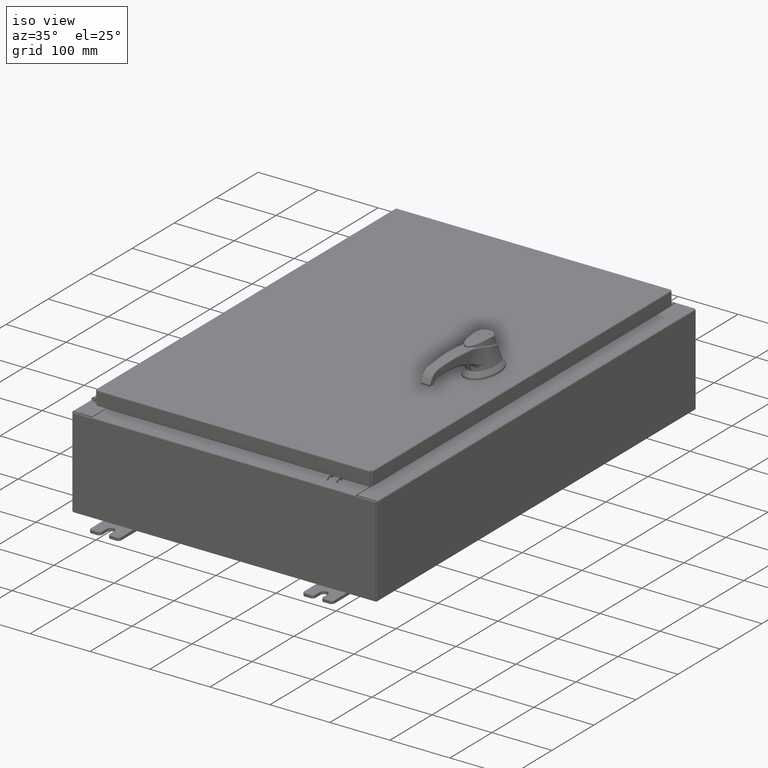
[diagram: clean part render]
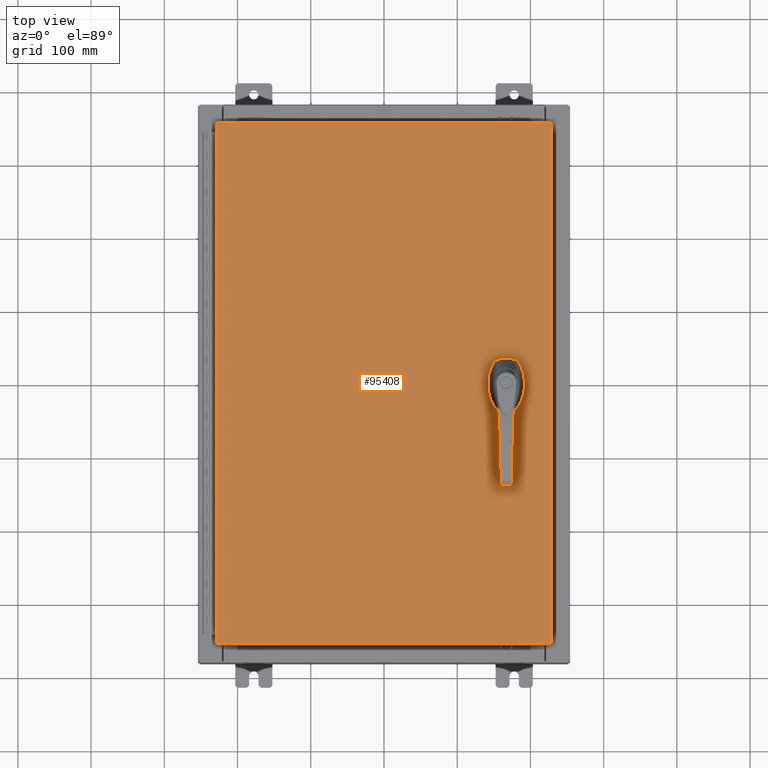
[diagram: tour spotlight — one face highlighted and labeled with its STEP entity id]
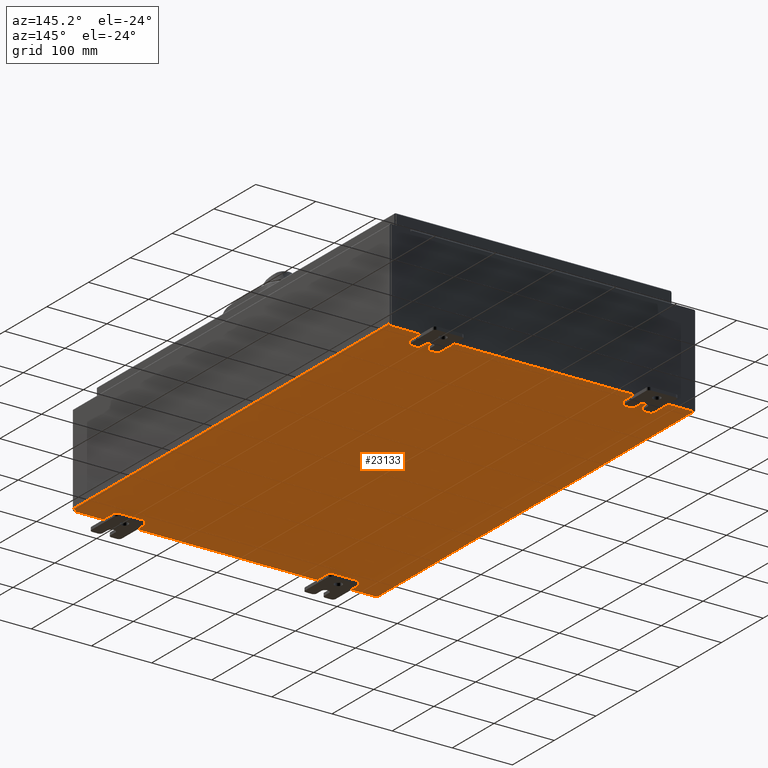
[diagram: tour spotlight — one face highlighted and labeled with its STEP entity id]
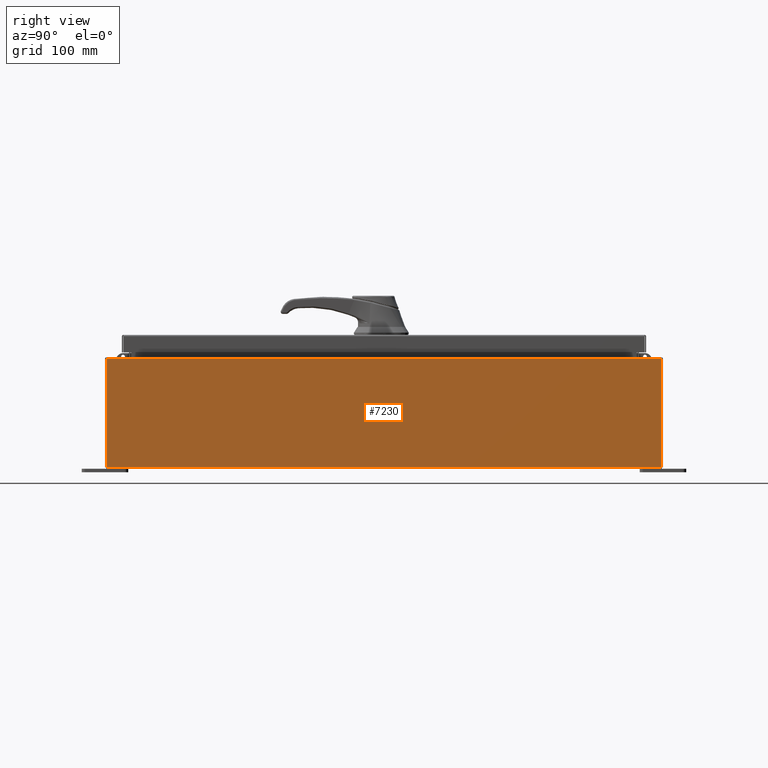
[diagram: tour spotlight — one face highlighted and labeled with its STEP entity id]
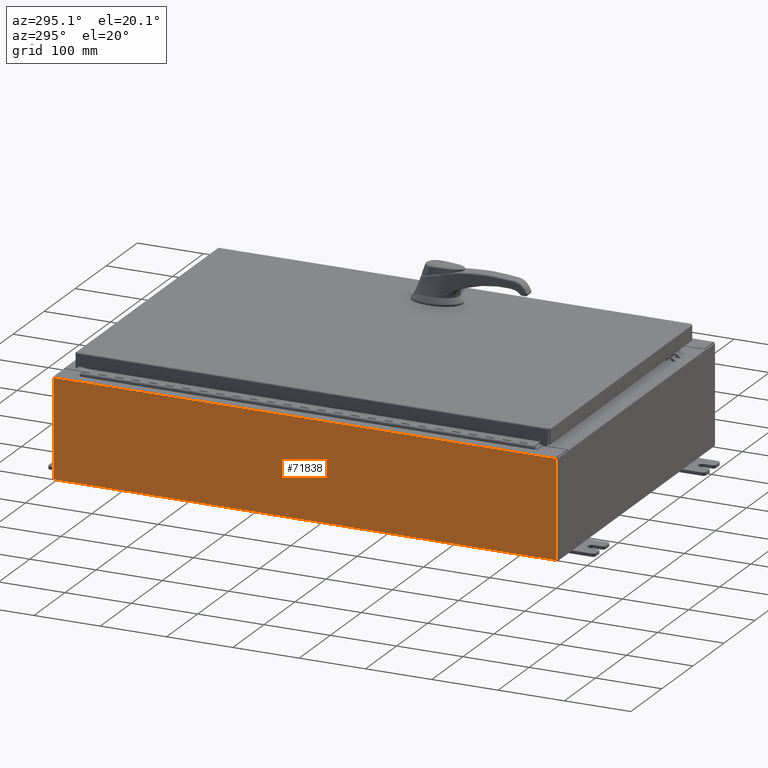
[diagram: tour spotlight — one face highlighted and labeled with its STEP entity id]
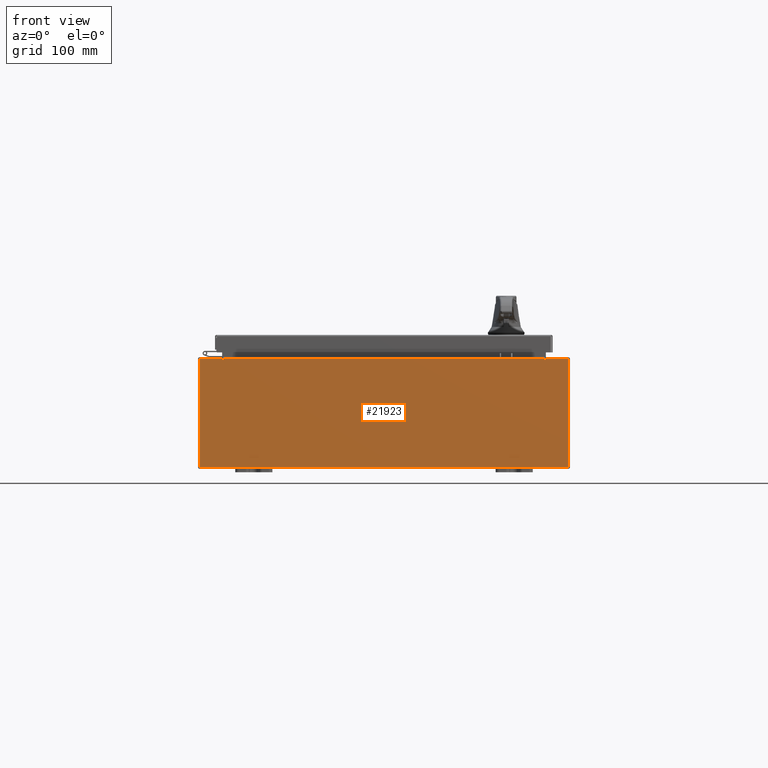
[diagram: tour spotlight — one face highlighted and labeled with its STEP entity id]
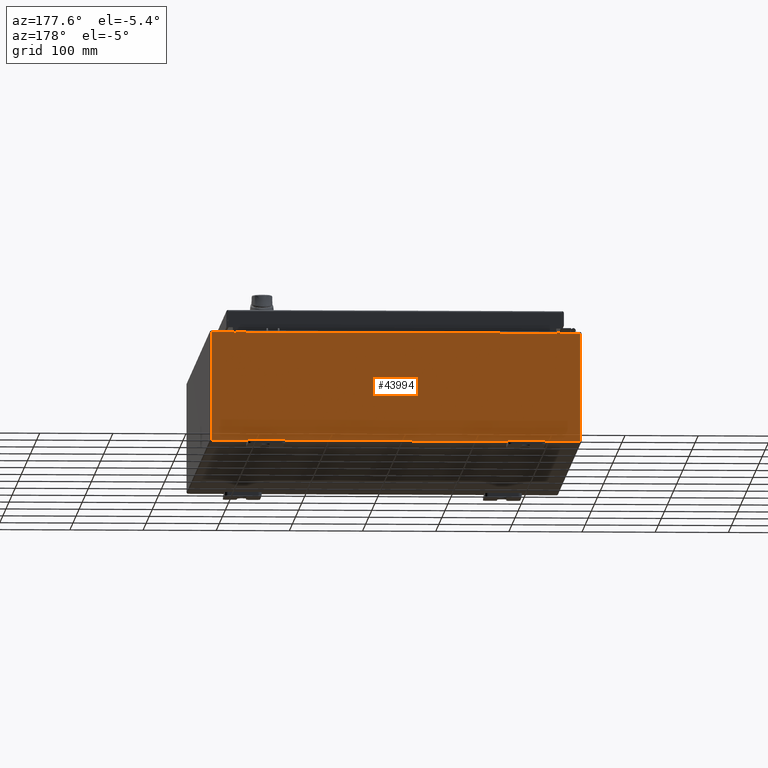
[diagram: tour spotlight — one face highlighted and labeled with its STEP entity id]
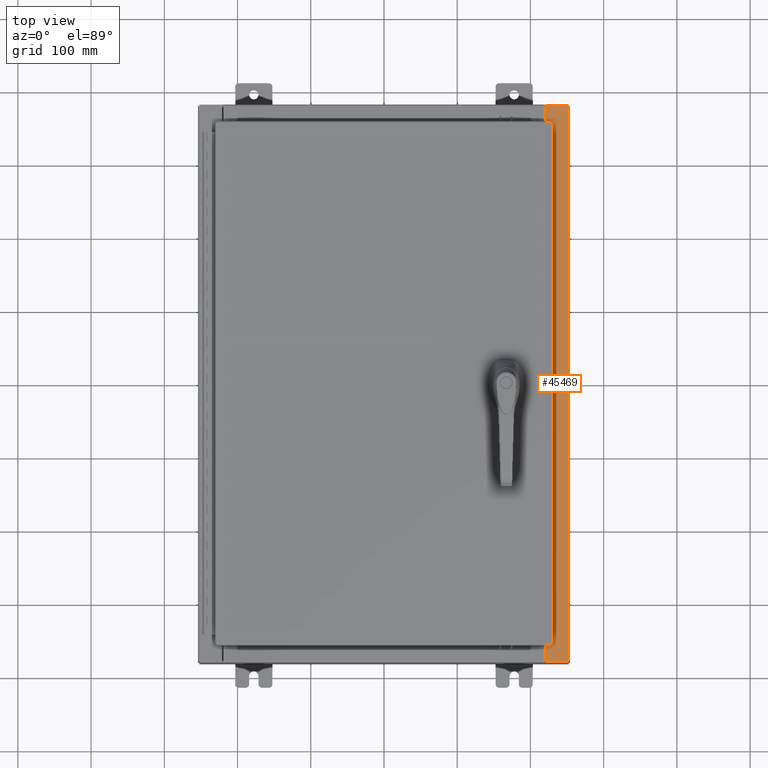
[diagram: tour spotlight — one face highlighted and labeled with its STEP entity id]
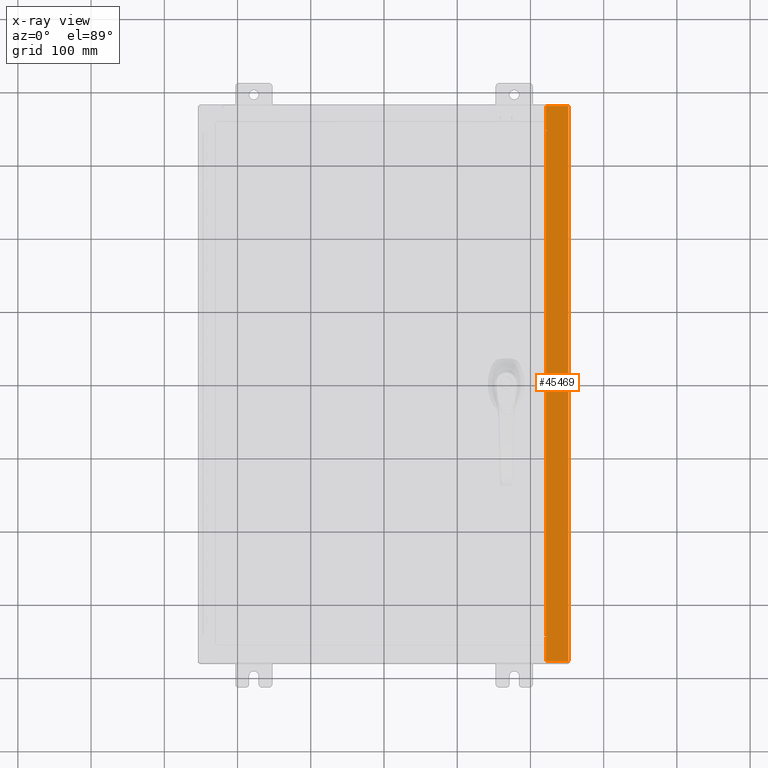
[diagram: x-ray of the same camera — body ghosted, this tour face saturated]
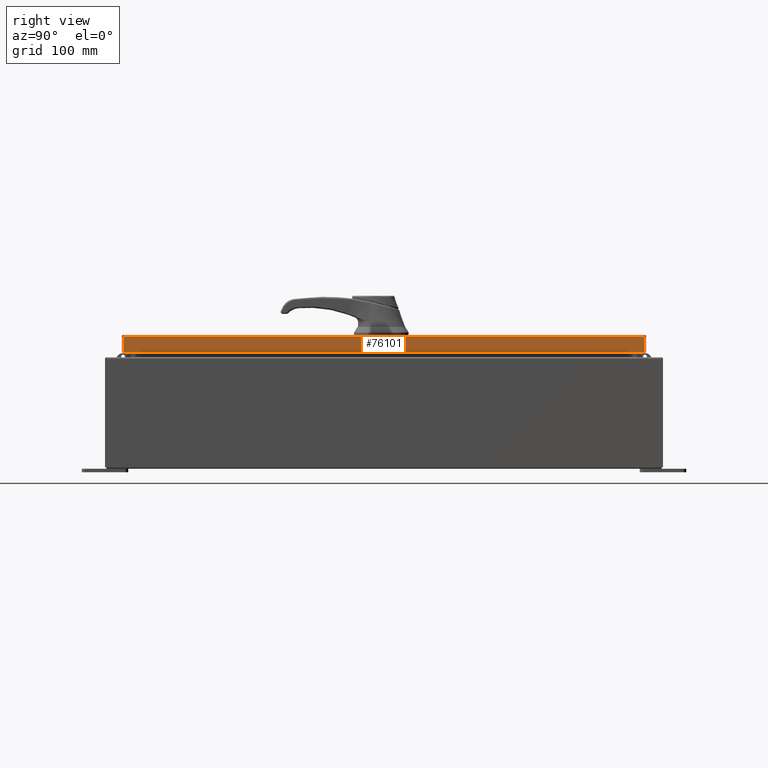
[diagram: tour spotlight — one face highlighted and labeled with its STEP entity id]
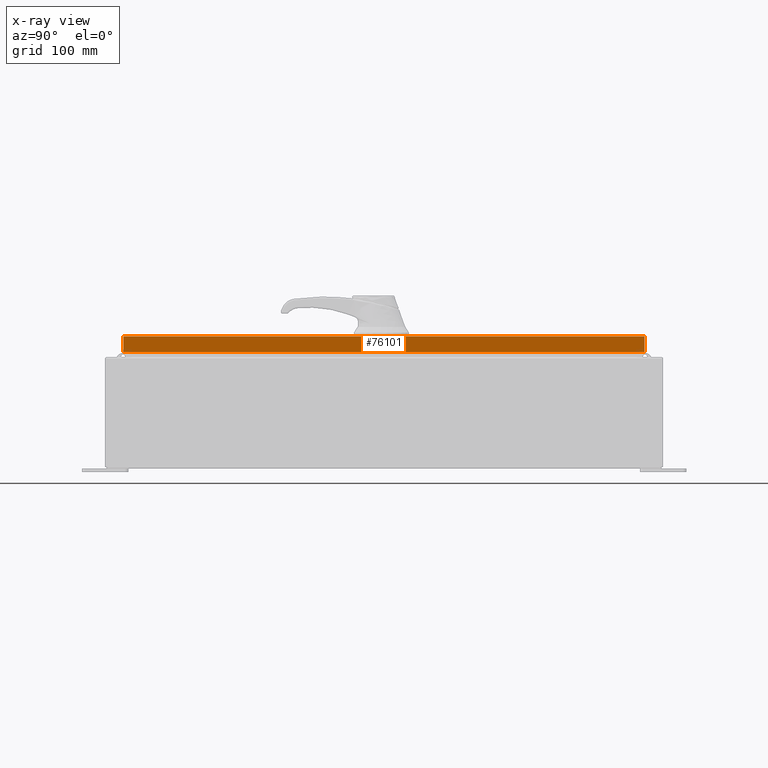
[diagram: x-ray of the same camera — body ghosted, this tour face saturated]
A machine part: a face-by-face anatomy tour. The part has 2662 B-rep faces; the first image is the clean iso view, then the 8 largest visible faces are spotlighted one at a time (largest first), each with its STEP entity span.

Face 1 — top view, entity #95408. In plain terms, the highlighted planar face has unit normal (0, 0, -1).
Definition (entity closure, byte-faithful):
#92 = AXIS2_PLACEMENT_3D ( 'NONE', #82658, #27859, #91804 ) ;
#544 = CARTESIAN_POINT ( 'NONE',  ( 6.778227370756310300, 0.4029999999999252000, 0.0000000000000000000 ) ) ;
#691 = ORIENTED_EDGE ( 'NONE', *, *, #28090, .T. ) ;
#1644 = AXIS2_PLACEMENT_3D ( 'NONE', #43897, #107857, #53075 ) ;
#3075 = CARTESIAN_POINT ( 'NONE',  ( 0.0000000000000000000, 0.4029999999999252000, 0.0000000000000000000 ) ) ;
#4623 = VERTEX_POINT ( 'NONE', #43830 ) ;
#7239 = VERTEX_POINT ( 'NONE', #43063 ) ;
#9115 = ORIENTED_EDGE ( 'NONE', *, *, #14921, .T. ) ;
#9915 = CARTESIAN_POINT ( 'NONE',  ( 6.175000000000075300, 0.2002273707563079800, 0.0000000000000000000 ) ) ;
#11913 = DIRECTION ( 'NONE',  ( -1.000000000000000000, 0.0000000000000000000, 0.0000000000000000000 ) ) ;
#12207 = CARTESIAN_POINT ( 'NONE',  ( -8.990299999999997700, 14.00630000000000100, -2.048885995248197400E-016 ) ) ;
#13212 = FACE_BOUND ( 'NONE', #65849, .T. ) ;
#14921 = EDGE_CURVE ( 'NONE', #85631, #7239, #77626, .T. ) ;
#15693 = LINE ( 'NONE', #12207, #40017 ) ;
#15744 = EDGE_CURVE ( 'NONE', #54691, #48747, #101811, .T. ) ;
#17317 = LINE ( 'NONE', #111252, #87394 ) ;
#19694 = EDGE_CURVE ( 'NONE', #117045, #90565, #102743, .T. ) ;
#23862 = CIRCLE ( 'NONE', #80195, 0.4499999999999156900 ) ;
#24310 = ORIENTED_EDGE ( 'NONE', *, *, #70498, .F. ) ;
#24340 = EDGE_CURVE ( 'NONE', #62204, #54291, #17317, .T. ) ;
#26039 = AXIS2_PLACEMENT_3D ( 'NONE', #72092, #35706, #99696 ) ;
#27643 = CARTESIAN_POINT ( 'NONE',  ( 6.578000000000000300, 0.0000000000000000000, 0.0000000000000000000 ) ) ;
#27859 = DIRECTION ( 'NONE',  ( -0.0000000000000000000, 0.0000000000000000000, 1.000000000000000000 ) ) ;
#28090 = EDGE_CURVE ( 'NONE', #54291, #54691, #81398, .T. ) ;
#31062 = CARTESIAN_POINT ( 'NONE',  ( 6.377772629243691100, -0.4029999999999252000, 0.0000000000000000000 ) ) ;
#31640 = CARTESIAN_POINT ( 'NONE',  ( 6.578000000000000300, -1.338000000000000100, 0.0000000000000000000 ) ) ;
#33924 = CARTESIAN_POINT ( 'NONE',  ( 6.980999999999926200, 0.0000000000000000000, 0.0000000000000000000 ) ) ;
#35706 = DIRECTION ( 'NONE',  ( 0.0000000000000000000, 0.0000000000000000000, -1.000000000000000000 ) ) ;
#36673 = CARTESIAN_POINT ( 'NONE',  ( 0.0000000000000000000, -0.4029999999999252000, 0.0000000000000000000 ) ) ;
#36841 = DIRECTION ( 'NONE',  ( 1.000000000000000000, 0.0000000000000000000, 0.0000000000000000000 ) ) ;
#37277 = CIRCLE ( 'NONE', #1644, 0.1715000000000000700 ) ;
#37427 = CARTESIAN_POINT ( 'NONE',  ( 8.990300000000001300, -14.00629999999999800, -7.683322482180740400E-016 ) ) ;
#37844 = CARTESIAN_POINT ( 'NONE',  ( 6.578000000000000300, 0.0000000000000000000, 0.0000000000000000000 ) ) ;
#38164 = CARTESIAN_POINT ( 'NONE',  ( 8.990300000000001300, -14.00629999999999800, -7.683322482180740400E-016 ) ) ;
#40017 = VECTOR ( 'NONE', #67010, 39.37007874015748100 ) ;
#40130 = CIRCLE ( 'NONE', #107537, 0.4499999999999156900 ) ;
#40859 = DIRECTION ( 'NONE',  ( 1.000000000000000000, 0.0000000000000000000, 0.0000000000000000000 ) ) ;
#43063 = CARTESIAN_POINT ( 'NONE',  ( 6.980999999999926200, -0.2002273707563079800, 0.0000000000000000000 ) ) ;
#43830 = CARTESIAN_POINT ( 'NONE',  ( 6.175000000000075300, -0.2002273707563079800, 0.0000000000000000000 ) ) ;
#43897 = CARTESIAN_POINT ( 'NONE',  ( 6.578000000000000300, -1.338000000000000100, 0.0000000000000000000 ) ) ;
#44626 = ORIENTED_EDGE ( 'NONE', *, *, #78224, .F. ) ;
#44869 = EDGE_LOOP ( 'NONE', ( #62395, #691, #45487, #103139 ) ) ;
#45487 = ORIENTED_EDGE ( 'NONE', *, *, #15744, .T. ) ;
#45591 = VECTOR ( 'NONE', #109932, 39.37007874015748100 ) ;
#47082 = DIRECTION ( 'NONE',  ( 1.000000000000000000, 0.0000000000000000000, 0.0000000000000000000 ) ) ;
#47268 = CARTESIAN_POINT ( 'NONE',  ( 8.990300000000001300, 14.00629999999999800, -2.048885995248197400E-016 ) ) ;
#48747 = VERTEX_POINT ( 'NONE', #105863 ) ;
#50665 = CARTESIAN_POINT ( 'NONE',  ( 6.578000000000000300, 0.0000000000000000000, 0.0000000000000000000 ) ) ;
#53075 = DIRECTION ( 'NONE',  ( 1.000000000000000000, 0.0000000000000000000, 0.0000000000000000000 ) ) ;
#53214 = VECTOR ( 'NONE', #67573, 39.37007874015748100 ) ;
#54224 = VECTOR ( 'NONE', #111392, 39.37007874015748100 ) ;
#54291 = VERTEX_POINT ( 'NONE', #37427 ) ;
#54691 = VERTEX_POINT ( 'NONE', #83912 ) ;
#57176 = CIRCLE ( 'NONE', #94510, 0.1715000000000000700 ) ;
#59292 = EDGE_LOOP ( 'NONE', ( #109755, #96561 ) ) ;
#59871 = DIRECTION ( 'NONE',  ( 1.000000000000000000, 0.0000000000000000000, 0.0000000000000000000 ) ) ;
#61947 = VECTOR ( 'NONE', #79205, 39.37007874015748100 ) ;
#62204 = VERTEX_POINT ( 'NONE', #65488 ) ;
#62395 = ORIENTED_EDGE ( 'NONE', *, *, #24340, .T. ) ;
#64008 = ORIENTED_EDGE ( 'NONE', *, *, #110717, .F. ) ;
#64624 = CIRCLE ( 'NONE', #92, 0.4499999999999156900 ) ;
#64919 = CARTESIAN_POINT ( 'NONE',  ( 6.980999999999926200, 0.2002273707563080300, 0.0000000000000000000 ) ) ;
#65488 = CARTESIAN_POINT ( 'NONE',  ( -8.990299999999997700, -14.00629999999999800, 1.980589795406590900E-015 ) ) ;
#65849 = EDGE_LOOP ( 'NONE', ( #9115, #24310, #64008, #104284, #44626, #104564, #110988, #76810 ) ) ;
#67010 = DIRECTION ( 'NONE',  ( 0.0000000000000000000, -1.000000000000000000, 0.0000000000000000000 ) ) ;
#67573 = DIRECTION ( 'NONE',  ( -1.000000000000000000, -0.0000000000000000000, -0.0000000000000000000 ) ) ;
#69512 = DIRECTION ( 'NONE',  ( 0.0000000000000000000, -1.000000000000000000, 0.0000000000000000000 ) ) ;
#70498 = EDGE_CURVE ( 'NONE', #87689, #7239, #100191, .T. ) ;
#72092 = CARTESIAN_POINT ( 'NONE',  ( 0.0000000000000000000, 0.0000000000000000000, 0.0000000000000000000 ) ) ;
#72741 = LINE ( 'NONE', #36673, #45591 ) ;
#74439 = DIRECTION ( 'NONE',  ( 1.000000000000000000, -0.0000000000000000000, -0.0000000000000000000 ) ) ;
#75565 = VECTOR ( 'NONE', #11913, 39.37007874015748100 ) ;
#75750 = CARTESIAN_POINT ( 'NONE',  ( 6.377772629243691100, 0.4029999999999252000, 0.0000000000000000000 ) ) ;
#76810 = ORIENTED_EDGE ( 'NONE', *, *, #100011, .F. ) ;
#77307 = VERTEX_POINT ( 'NONE', #95621 ) ;
#77626 = LINE ( 'NONE', #33924, #61947 ) ;
#78224 = EDGE_CURVE ( 'NONE', #114619, #4623, #111476, .T. ) ;
#79205 = DIRECTION ( 'NONE',  ( 0.0000000000000000000, -1.000000000000000000, 0.0000000000000000000 ) ) ;
#79902 = CARTESIAN_POINT ( 'NONE',  ( 6.778227370756310300, -0.4029999999999252000, 0.0000000000000000000 ) ) ;
#80195 = AXIS2_PLACEMENT_3D ( 'NONE', #27643, #91604, #36841 ) ;
#81398 = LINE ( 'NONE', #38164, #54224 ) ;
#82658 = CARTESIAN_POINT ( 'NONE',  ( 6.578000000000000300, 0.0000000000000000000, 0.0000000000000000000 ) ) ;
#83912 = CARTESIAN_POINT ( 'NONE',  ( 8.990300000000001300, 14.00629999999999800, -2.048885995248197400E-016 ) ) ;
#84137 = EDGE_CURVE ( 'NONE', #4623, #95997, #64624, .T. ) ;
#85146 = EDGE_CURVE ( 'NONE', #77307, #111325, #37277, .T. ) ;
#85631 = VERTEX_POINT ( 'NONE', #64919 ) ;
#86155 = FACE_BOUND ( 'NONE', #59292, .T. ) ;
#87394 = VECTOR ( 'NONE', #74439, 39.37007874015748100 ) ;
#87546 = CARTESIAN_POINT ( 'NONE',  ( 6.406500000000000300, -1.338000000000000100, 0.0000000000000000000 ) ) ;
#87689 = VERTEX_POINT ( 'NONE', #79902 ) ;
#90453 = PLANE ( 'NONE',  #26039 ) ;
#90565 = VERTEX_POINT ( 'NONE', #75750 ) ;
#91604 = DIRECTION ( 'NONE',  ( -0.0000000000000000000, 0.0000000000000000000, 1.000000000000000000 ) ) ;
#91804 = DIRECTION ( 'NONE',  ( 1.000000000000000000, 0.0000000000000000000, 0.0000000000000000000 ) ) ;
#94510 = AXIS2_PLACEMENT_3D ( 'NONE', #31640, #95616, #40859 ) ;
#95408 = ADVANCED_FACE ( 'NONE', ( #86155, #107702, #13212 ), #90453, .F. ) ;
#95616 = DIRECTION ( 'NONE',  ( -0.0000000000000000000, 0.0000000000000000000, 1.000000000000000000 ) ) ;
#95621 = CARTESIAN_POINT ( 'NONE',  ( 6.749500000000001200, -1.338000000000000100, 0.0000000000000000000 ) ) ;
#95997 = VERTEX_POINT ( 'NONE', #31062 ) ;
#96561 = ORIENTED_EDGE ( 'NONE', *, *, #101354, .F. ) ;
#99295 = AXIS2_PLACEMENT_3D ( 'NONE', #37844, #101801, #47082 ) ;
#99696 = DIRECTION ( 'NONE',  ( -1.000000000000000000, 0.0000000000000000000, -0.0000000000000000000 ) ) ;
#100011 = EDGE_CURVE ( 'NONE', #85631, #117045, #40130, .T. ) ;
#100191 = CIRCLE ( 'NONE', #99295, 0.4499999999999156900 ) ;
#101354 = EDGE_CURVE ( 'NONE', #111325, #77307, #57176, .T. ) ;
#101801 = DIRECTION ( 'NONE',  ( -0.0000000000000000000, 0.0000000000000000000, 1.000000000000000000 ) ) ;
#101811 = LINE ( 'NONE', #47268, #53214 ) ;
#102743 = LINE ( 'NONE', #3075, #75565 ) ;
#103139 = ORIENTED_EDGE ( 'NONE', *, *, #109074, .T. ) ;
#104284 = ORIENTED_EDGE ( 'NONE', *, *, #84137, .F. ) ;
#104564 = ORIENTED_EDGE ( 'NONE', *, *, #105899, .F. ) ;
#105724 = VECTOR ( 'NONE', #69512, 39.37007874015748100 ) ;
#105863 = CARTESIAN_POINT ( 'NONE',  ( -8.990299999999997700, 14.00630000000000100, -2.048885995248197400E-016 ) ) ;
#105899 = EDGE_CURVE ( 'NONE', #90565, #114619, #23862, .T. ) ;
#106707 = CARTESIAN_POINT ( 'NONE',  ( 6.175000000000075300, 0.0000000000000000000, 0.0000000000000000000 ) ) ;
#107537 = AXIS2_PLACEMENT_3D ( 'NONE', #50665, #114627, #59871 ) ;
#107702 = FACE_OUTER_BOUND ( 'NONE', #44869, .T. ) ;
#107857 = DIRECTION ( 'NONE',  ( -0.0000000000000000000, 0.0000000000000000000, 1.000000000000000000 ) ) ;
#109074 = EDGE_CURVE ( 'NONE', #48747, #62204, #15693, .T. ) ;
#109755 = ORIENTED_EDGE ( 'NONE', *, *, #85146, .F. ) ;
#109932 = DIRECTION ( 'NONE',  ( 1.000000000000000000, 0.0000000000000000000, 0.0000000000000000000 ) ) ;
#110717 = EDGE_CURVE ( 'NONE', #95997, #87689, #72741, .T. ) ;
#110988 = ORIENTED_EDGE ( 'NONE', *, *, #19694, .F. ) ;
#111252 = CARTESIAN_POINT ( 'NONE',  ( -8.990299999999996000, -14.00629999999999800, 1.963515745446189200E-015 ) ) ;
#111325 = VERTEX_POINT ( 'NONE', #87546 ) ;
#111392 = DIRECTION ( 'NONE',  ( 0.0000000000000000000, 1.000000000000000000, 0.0000000000000000000 ) ) ;
#111476 = LINE ( 'NONE', #106707, #105724 ) ;
#114619 = VERTEX_POINT ( 'NONE', #9915 ) ;
#114627 = DIRECTION ( 'NONE',  ( -0.0000000000000000000, 0.0000000000000000000, 1.000000000000000000 ) ) ;
#117045 = VERTEX_POINT ( 'NONE', #544 ) ;

Face 2 — auxiliary view, entity #23133. In plain terms, the highlighted planar face has unit normal (0, 0, -1).
Definition (entity closure, byte-faithful):
#10346 = DIRECTION ( 'NONE',  ( -0.0000000000000000000, 1.000000000000000000, -0.0000000000000000000 ) ) ;
#16162 = DIRECTION ( 'NONE',  ( 1.000000000000000000, 0.0000000000000000000, 0.0000000000000000000 ) ) ;
#17081 = AXIS2_PLACEMENT_3D ( 'NONE', #46960, #110945, #56143 ) ;
#18031 = VERTEX_POINT ( 'NONE', #48828 ) ;
#18890 = FACE_OUTER_BOUND ( 'NONE', #115937, .T. ) ;
#22009 = CARTESIAN_POINT ( 'NONE',  ( 9.912300000000000100, 14.92530000000000500, -0.07469999999999994700 ) ) ;
#23133 = ADVANCED_FACE ( 'NONE', ( #18890 ), #37709, .T. ) ;
#24408 = LINE ( 'NONE', #74344, #48781 ) ;
#24589 = EDGE_CURVE ( 'NONE', #28453, #18031, #24408, .T. ) ;
#26120 = ORIENTED_EDGE ( 'NONE', *, *, #68211, .T. ) ;
#28453 = VERTEX_POINT ( 'NONE', #87234 ) ;
#28895 = LINE ( 'NONE', #97125, #59004 ) ;
#31739 = VERTEX_POINT ( 'NONE', #22009 ) ;
#35713 = VECTOR ( 'NONE', #16162, 39.37007874015748100 ) ;
#36121 = LINE ( 'NONE', #44887, #84730 ) ;
#37709 = PLANE ( 'NONE',  #17081 ) ;
#39993 = ORIENTED_EDGE ( 'NONE', *, *, #24589, .T. ) ;
#41775 = CARTESIAN_POINT ( 'NONE',  ( 9.912300000000000100, -14.92529999999999600, -0.07470000000000000300 ) ) ;
#44887 = CARTESIAN_POINT ( 'NONE',  ( -10.00000000000000000, 14.92530000000000500, -0.07470000000000000300 ) ) ;
#46960 = CARTESIAN_POINT ( 'NONE',  ( 0.0000000000000000000, 0.0000000000000000000, -0.07470000000000000300 ) ) ;
#48781 = VECTOR ( 'NONE', #10346, 39.37007874015748100 ) ;
#48828 = CARTESIAN_POINT ( 'NONE',  ( -9.912300000000000100, 14.92530000000000500, -0.07470000000000000300 ) ) ;
#56143 = DIRECTION ( 'NONE',  ( -1.000000000000000000, 0.0000000000000000000, -0.0000000000000000000 ) ) ;
#59004 = VECTOR ( 'NONE', #60791, 39.37007874015748100 ) ;
#60791 = DIRECTION ( 'NONE',  ( -0.0000000000000000000, -1.000000000000000000, -0.0000000000000000000 ) ) ;
#63265 = DIRECTION ( 'NONE',  ( -1.000000000000000000, -0.0000000000000000000, -0.0000000000000000000 ) ) ;
#66249 = EDGE_CURVE ( 'NONE', #31739, #18031, #36121, .T. ) ;
#68211 = EDGE_CURVE ( 'NONE', #31739, #102843, #28895, .T. ) ;
#71066 = EDGE_CURVE ( 'NONE', #28453, #102843, #84308, .T. ) ;
#74344 = CARTESIAN_POINT ( 'NONE',  ( -9.912300000000000100, -14.92529999999999600, -0.07469999999999994700 ) ) ;
#84308 = LINE ( 'NONE', #116947, #35713 ) ;
#84730 = VECTOR ( 'NONE', #63265, 39.37007874015748100 ) ;
#87234 = CARTESIAN_POINT ( 'NONE',  ( -9.912300000000000100, -14.92529999999999600, -0.07469999999999994700 ) ) ;
#92704 = ORIENTED_EDGE ( 'NONE', *, *, #66249, .F. ) ;
#97125 = CARTESIAN_POINT ( 'NONE',  ( 9.912300000000000100, 14.92530000000000500, -0.07469999999999994700 ) ) ;
#102843 = VERTEX_POINT ( 'NONE', #41775 ) ;
#110945 = DIRECTION ( 'NONE',  ( 0.0000000000000000000, 0.0000000000000000000, -1.000000000000000000 ) ) ;
#114831 = ORIENTED_EDGE ( 'NONE', *, *, #71066, .F. ) ;
#115937 = EDGE_LOOP ( 'NONE', ( #114831, #39993, #92704, #26120 ) ) ;
#116947 = CARTESIAN_POINT ( 'NONE',  ( -10.00000000000000000, -14.92529999999999600, -0.07470000000000000300 ) ) ;

Face 3 — right view, entity #7230. In plain terms, the highlighted planar face has unit normal (-1, 0, 0).
Definition (entity closure, byte-faithful):
#412 = ORIENTED_EDGE ( 'NONE', *, *, #53691, .F. ) ;
#3364 = VERTEX_POINT ( 'NONE', #83785 ) ;
#3996 = CARTESIAN_POINT ( 'NONE',  ( 10.00000000000000000, -14.92529999999999600, -3.345627304943080600E-014 ) ) ;
#7230 = ADVANCED_FACE ( 'NONE', ( #67960 ), #115914, .F. ) ;
#8603 = DIRECTION ( 'NONE',  ( 3.319545939341922000E-015, 0.0000000000000000000, 1.000000000000000000 ) ) ;
#9199 = CARTESIAN_POINT ( 'NONE',  ( 10.00000000000002000, 14.92530000000000700, 5.837600000000001000 ) ) ;
#12672 = VERTEX_POINT ( 'NONE', #21398 ) ;
#16226 = LINE ( 'NONE', #3996, #116413 ) ;
#17066 = ORIENTED_EDGE ( 'NONE', *, *, #54567, .T. ) ;
#18241 = VECTOR ( 'NONE', #99541, 39.37007874015748100 ) ;
#21398 = CARTESIAN_POINT ( 'NONE',  ( 10.00000000000000000, -14.92529999999999600, 0.01299999999999985900 ) ) ;
#24511 = LINE ( 'NONE', #9199, #94608 ) ;
#26329 = CARTESIAN_POINT ( 'NONE',  ( 10.00000000000000000, 14.92530000000000500, -3.345627304943080600E-014 ) ) ;
#28855 = CARTESIAN_POINT ( 'NONE',  ( 10.00000000000000000, -14.92529999999999600, 0.01299999999999986400 ) ) ;
#29755 = CARTESIAN_POINT ( 'NONE',  ( 10.00000000000002000, 14.92530000000000700, 5.837600000000001000 ) ) ;
#34215 = EDGE_CURVE ( 'NONE', #36418, #12672, #16226, .T. ) ;
#35195 = EDGE_LOOP ( 'NONE', ( #17066, #66408, #412, #108127 ) ) ;
#36418 = VERTEX_POINT ( 'NONE', #47889 ) ;
#42285 = DIRECTION ( 'NONE',  ( -1.000000000000000000, 0.0000000000000000000, 3.319545939341922000E-015 ) ) ;
#45489 = LINE ( 'NONE', #26329, #18241 ) ;
#47889 = CARTESIAN_POINT ( 'NONE',  ( 10.00000000000002000, -14.92529999999999800, 5.837600000000001000 ) ) ;
#53691 = EDGE_CURVE ( 'NONE', #3364, #12672, #103352, .T. ) ;
#54567 = EDGE_CURVE ( 'NONE', #93142, #36418, #24511, .T. ) ;
#54734 = VECTOR ( 'NONE', #84028, 39.37007874015748100 ) ;
#66408 = ORIENTED_EDGE ( 'NONE', *, *, #34215, .T. ) ;
#67960 = FACE_OUTER_BOUND ( 'NONE', #35195, .T. ) ;
#68024 = DIRECTION ( 'NONE',  ( -3.319545939341922800E-015, 0.0000000000000000000, -1.000000000000000000 ) ) ;
#83785 = CARTESIAN_POINT ( 'NONE',  ( 10.00000000000000000, 14.92530000000000500, 0.01299999999999986400 ) ) ;
#84028 = DIRECTION ( 'NONE',  ( -0.0000000000000000000, -1.000000000000000000, -0.0000000000000000000 ) ) ;
#93142 = VERTEX_POINT ( 'NONE', #29755 ) ;
#94608 = VECTOR ( 'NONE', #100780, 39.37007874015748100 ) ;
#99541 = DIRECTION ( 'NONE',  ( 3.319545939341922800E-015, 0.0000000000000000000, 1.000000000000000000 ) ) ;
#100780 = DIRECTION ( 'NONE',  ( -0.0000000000000000000, -1.000000000000000000, -0.0000000000000000000 ) ) ;
#103352 = LINE ( 'NONE', #28855, #54734 ) ;
#103681 = EDGE_CURVE ( 'NONE', #3364, #93142, #45489, .T. ) ;
#108127 = ORIENTED_EDGE ( 'NONE', *, *, #103681, .T. ) ;
#109410 = CARTESIAN_POINT ( 'NONE',  ( 10.00000000000000000, 0.0000000000000000000, -3.345627304943080600E-014 ) ) ;
#115914 = PLANE ( 'NONE',  #115944 ) ;
#115944 = AXIS2_PLACEMENT_3D ( 'NONE', #109410, #42285, #8603 ) ;
#116413 = VECTOR ( 'NONE', #68024, 39.37007874015748100 ) ;

Face 4 — auxiliary view, entity #71838. In plain terms, the highlighted planar face has unit normal (1, 0, 0).
Definition (entity closure, byte-faithful):
#1664 = VECTOR ( 'NONE', #76267, 39.37007874015748100 ) ;
#3163 = DIRECTION ( 'NONE',  ( 3.319545939341922800E-015, 0.0000000000000000000, -1.000000000000000000 ) ) ;
#6057 = VECTOR ( 'NONE', #3163, 39.37007874015748100 ) ;
#9098 = LINE ( 'NONE', #29615, #54907 ) ;
#12270 = CARTESIAN_POINT ( 'NONE',  ( -10.00000000000000000, 14.92530000000000500, 0.01299999999999986400 ) ) ;
#16052 = ORIENTED_EDGE ( 'NONE', *, *, #37575, .T. ) ;
#17275 = DIRECTION ( 'NONE',  ( 1.000000000000000000, 0.0000000000000000000, 3.319545939341922800E-015 ) ) ;
#20367 = DIRECTION ( 'NONE',  ( 0.0000000000000000000, 1.000000000000000000, 0.0000000000000000000 ) ) ;
#21174 = CARTESIAN_POINT ( 'NONE',  ( -10.00000000000000000, 14.92530000000000500, -3.345627304943080600E-014 ) ) ;
#23400 = EDGE_CURVE ( 'NONE', #26011, #47063, #50395, .T. ) ;
#24515 = CARTESIAN_POINT ( 'NONE',  ( -10.00000000000000000, 14.92530000000000500, 0.01299999999999985900 ) ) ;
#26011 = VERTEX_POINT ( 'NONE', #41886 ) ;
#29396 = AXIS2_PLACEMENT_3D ( 'NONE', #35687, #17275, #54118 ) ;
#29615 = CARTESIAN_POINT ( 'NONE',  ( -10.00000000000001800, -14.92529999999999600, 5.837599999999999200 ) ) ;
#30368 = LINE ( 'NONE', #21174, #6057 ) ;
#35687 = CARTESIAN_POINT ( 'NONE',  ( -10.00000000000000000, 0.0000000000000000000, -3.345627304943080600E-014 ) ) ;
#37575 = EDGE_CURVE ( 'NONE', #26011, #115370, #88561, .T. ) ;
#39530 = CARTESIAN_POINT ( 'NONE',  ( -10.00000000000000000, -14.92529999999999600, -3.345627304943080600E-014 ) ) ;
#41886 = CARTESIAN_POINT ( 'NONE',  ( -10.00000000000000000, -14.92529999999999600, 0.01299999999999986400 ) ) ;
#43868 = ORIENTED_EDGE ( 'NONE', *, *, #117365, .T. ) ;
#44938 = PLANE ( 'NONE',  #29396 ) ;
#47063 = VERTEX_POINT ( 'NONE', #24515 ) ;
#47931 = ORIENTED_EDGE ( 'NONE', *, *, #66338, .T. ) ;
#48746 = DIRECTION ( 'NONE',  ( -3.319545939341922800E-015, 0.0000000000000000000, 1.000000000000000000 ) ) ;
#50395 = LINE ( 'NONE', #12270, #1664 ) ;
#51368 = CARTESIAN_POINT ( 'NONE',  ( -10.00000000000001800, -14.92529999999999600, 5.837599999999999200 ) ) ;
#53124 = EDGE_LOOP ( 'NONE', ( #43868, #47931, #75212, #16052 ) ) ;
#54118 = DIRECTION ( 'NONE',  ( 3.319545939341922800E-015, 0.0000000000000000000, -1.000000000000000000 ) ) ;
#54907 = VECTOR ( 'NONE', #20367, 39.37007874015748100 ) ;
#65856 = CARTESIAN_POINT ( 'NONE',  ( -10.00000000000002000, 14.92530000000000500, 5.837599999999999200 ) ) ;
#66338 = EDGE_CURVE ( 'NONE', #68719, #47063, #30368, .T. ) ;
#68719 = VERTEX_POINT ( 'NONE', #65856 ) ;
#71838 = ADVANCED_FACE ( 'NONE', ( #115125 ), #44938, .F. ) ;
#75212 = ORIENTED_EDGE ( 'NONE', *, *, #23400, .F. ) ;
#76267 = DIRECTION ( 'NONE',  ( -0.0000000000000000000, 1.000000000000000000, -0.0000000000000000000 ) ) ;
#85670 = VECTOR ( 'NONE', #48746, 39.37007874015748100 ) ;
#88561 = LINE ( 'NONE', #39530, #85670 ) ;
#115125 = FACE_OUTER_BOUND ( 'NONE', #53124, .T. ) ;
#115370 = VERTEX_POINT ( 'NONE', #51368 ) ;
#117365 = EDGE_CURVE ( 'NONE', #115370, #68719, #9098, .T. ) ;

Face 5 — front view, entity #21923. In plain terms, the highlighted planar face has unit normal (-0, 1, -0).
Definition (entity closure, byte-faithful):
#385 = CARTESIAN_POINT ( 'NONE',  ( 8.674550000000001800, 0.0000000000000000000, 2.925300000000000500 ) ) ;
#661 = DIRECTION ( 'NONE',  ( -1.000000000000000000, -0.0000000000000000000, -0.0000000000000000000 ) ) ;
#2426 = LINE ( 'NONE', #46049, #48299 ) ;
#4656 = AXIS2_PLACEMENT_3D ( 'NONE', #97240, #42514, #106479 ) ;
#6964 = EDGE_CURVE ( 'NONE', #36779, #23567, #15063, .T. ) ;
#7312 = EDGE_LOOP ( 'NONE', ( #43860, #20205, #104399, #20427, #91017, #14299, #7687, #38651, #33270, #96891, #44574, #90879 ) ) ;
#7687 = ORIENTED_EDGE ( 'NONE', *, *, #56361, .F. ) ;
#8716 = LINE ( 'NONE', #37563, #103125 ) ;
#9112 = VERTEX_POINT ( 'NONE', #57293 ) ;
#9589 = DIRECTION ( 'NONE',  ( 1.000000000000000000, 0.0000000000000000000, 0.0000000000000000000 ) ) ;
#10807 = CARTESIAN_POINT ( 'NONE',  ( -8.637200000000000000, 1.024442997624098700E-016, 2.912300000000000600 ) ) ;
#12001 = DIRECTION ( 'NONE',  ( 0.0000000000000000000, 0.0000000000000000000, -1.000000000000000000 ) ) ;
#13959 = FACE_OUTER_BOUND ( 'NONE', #7312, .T. ) ;
#14039 = VERTEX_POINT ( 'NONE', #74097 ) ;
#14299 = ORIENTED_EDGE ( 'NONE', *, *, #20945, .F. ) ;
#15063 = LINE ( 'NONE', #41328, #36516 ) ;
#19537 = EDGE_CURVE ( 'NONE', #83394, #36779, #105663, .T. ) ;
#20205 = ORIENTED_EDGE ( 'NONE', *, *, #63257, .F. ) ;
#20427 = ORIENTED_EDGE ( 'NONE', *, *, #63934, .T. ) ;
#20726 = DIRECTION ( 'NONE',  ( 0.0000000000000000000, 0.0000000000000000000, -1.000000000000000000 ) ) ;
#20945 = EDGE_CURVE ( 'NONE', #37918, #45795, #42582, .T. ) ;
#21923 = ADVANCED_FACE ( 'NONE', ( #13959 ), #66108, .F. ) ;
#22142 = EDGE_CURVE ( 'NONE', #78998, #80190, #2426, .T. ) ;
#22663 = VECTOR ( 'NONE', #12001, 39.37007874015748100 ) ;
#23567 = VERTEX_POINT ( 'NONE', #77456 ) ;
#28005 = DIRECTION ( 'NONE',  ( -0.0000000000000000000, -0.0000000000000000000, 1.000000000000000000 ) ) ;
#29071 = VERTEX_POINT ( 'NONE', #53051 ) ;
#29709 = DIRECTION ( 'NONE',  ( 0.0000000000000000000, -1.000000000000000000, 0.0000000000000000000 ) ) ;
#29825 = CARTESIAN_POINT ( 'NONE',  ( 8.655875000000000000, 0.0000000000000000000, 2.874950000000000600 ) ) ;
#32345 = VECTOR ( 'NONE', #60256, 39.37007874015748100 ) ;
#33270 = ORIENTED_EDGE ( 'NONE', *, *, #6964, .T. ) ;
#36179 = AXIS2_PLACEMENT_3D ( 'NONE', #111740, #29709, #93668 ) ;
#36516 = VECTOR ( 'NONE', #20726, 39.37007874015748100 ) ;
#36779 = VERTEX_POINT ( 'NONE', #80169 ) ;
#37563 = CARTESIAN_POINT ( 'NONE',  ( -8.674549999999996400, -0.0000000000000000000, 0.0000000000000000000 ) ) ;
#37918 = VERTEX_POINT ( 'NONE', #64648 ) ;
#38651 = ORIENTED_EDGE ( 'NONE', *, *, #19537, .T. ) ;
#39019 = DIRECTION ( 'NONE',  ( 0.0000000000000000000, 0.0000000000000000000, -1.000000000000000000 ) ) ;
#41328 = CARTESIAN_POINT ( 'NONE',  ( 9.925300000000000000, 0.0000000000000000000, 2.925300000000000500 ) ) ;
#42514 = DIRECTION ( 'NONE',  ( -0.0000000000000000000, 1.000000000000000000, -0.0000000000000000000 ) ) ;
#42582 = CIRCLE ( 'NONE', #110521, 0.01867500000000003900 ) ;
#42955 = LINE ( 'NONE', #114214, #88654 ) ;
#43667 = LINE ( 'NONE', #59059, #58077 ) ;
#43860 = ORIENTED_EDGE ( 'NONE', *, *, #55160, .F. ) ;
#44574 = ORIENTED_EDGE ( 'NONE', *, *, #22142, .T. ) ;
#45795 = VERTEX_POINT ( 'NONE', #68038 ) ;
#46049 = CARTESIAN_POINT ( 'NONE',  ( -9.925300000000000000, 0.0000000000000000000, 2.925300000000000500 ) ) ;
#46141 = CARTESIAN_POINT ( 'NONE',  ( -9.925300000000000000, 0.0000000000000000000, 2.925300000000000500 ) ) ;
#46317 = CARTESIAN_POINT ( 'NONE',  ( -9.925300000000000000, 0.0000000000000000000, -2.925299999999999600 ) ) ;
#48299 = VECTOR ( 'NONE', #28005, 39.37007874015748100 ) ;
#53051 = CARTESIAN_POINT ( 'NONE',  ( -8.674549999999996400, 0.0000000000000000000, 2.874950000000000600 ) ) ;
#55160 = EDGE_CURVE ( 'NONE', #29071, #93435, #8716, .T. ) ;
#56361 = EDGE_CURVE ( 'NONE', #83394, #37918, #42955, .T. ) ;
#57293 = CARTESIAN_POINT ( 'NONE',  ( -8.637199999999996400, -0.0000000000000000000, 2.874950000000000600 ) ) ;
#57449 = EDGE_CURVE ( 'NONE', #14039, #9112, #95665, .T. ) ;
#58077 = VECTOR ( 'NONE', #59861, 39.37007874015748100 ) ;
#59059 = CARTESIAN_POINT ( 'NONE',  ( 8.637200000000000000, 0.0000000000000000000, 0.0000000000000000000 ) ) ;
#59861 = DIRECTION ( 'NONE',  ( 0.0000000000000000000, 0.0000000000000000000, 1.000000000000000000 ) ) ;
#60256 = DIRECTION ( 'NONE',  ( 1.000000000000000000, 0.0000000000000000000, 0.0000000000000000000 ) ) ;
#62549 = EDGE_CURVE ( 'NONE', #80190, #93435, #105337, .T. ) ;
#63257 = EDGE_CURVE ( 'NONE', #9112, #29071, #68023, .T. ) ;
#63628 = CARTESIAN_POINT ( 'NONE',  ( -9.925300000000000000, 0.0000000000000000000, -2.925299999999999600 ) ) ;
#63934 = EDGE_CURVE ( 'NONE', #14039, #103542, #73666, .T. ) ;
#64397 = CARTESIAN_POINT ( 'NONE',  ( -9.925300000000000000, 0.0000000000000000000, 2.925300000000000500 ) ) ;
#64648 = CARTESIAN_POINT ( 'NONE',  ( 8.674550000000000000, 0.0000000000000000000, 2.874950000000000600 ) ) ;
#65202 = DIRECTION ( 'NONE',  ( 0.0000000000000000000, 0.0000000000000000000, 1.000000000000000000 ) ) ;
#66108 = PLANE ( 'NONE',  #36179 ) ;
#66794 = CARTESIAN_POINT ( 'NONE',  ( -8.637199999999996400, -0.0000000000000000000, 0.0000000000000000000 ) ) ;
#67907 = VECTOR ( 'NONE', #71509, 39.37007874015748100 ) ;
#68023 = CIRCLE ( 'NONE', #4656, 0.01867500000000003900 ) ;
#68038 = CARTESIAN_POINT ( 'NONE',  ( 8.637200000000000000, 0.0000000000000000000, 2.874950000000000600 ) ) ;
#68615 = EDGE_CURVE ( 'NONE', #23567, #78998, #76074, .T. ) ;
#71509 = DIRECTION ( 'NONE',  ( 1.000000000000000000, 0.0000000000000000000, 0.0000000000000000000 ) ) ;
#73666 = LINE ( 'NONE', #10807, #67907 ) ;
#74097 = CARTESIAN_POINT ( 'NONE',  ( -8.637199999999996400, 1.024442997624098700E-016, 2.912300000000000600 ) ) ;
#76074 = LINE ( 'NONE', #46317, #97545 ) ;
#77456 = CARTESIAN_POINT ( 'NONE',  ( 9.925300000000000000, 0.0000000000000000000, -2.925299999999999600 ) ) ;
#78617 = CARTESIAN_POINT ( 'NONE',  ( -9.925300000000000000, 0.0000000000000000000, 2.925300000000000500 ) ) ;
#78998 = VERTEX_POINT ( 'NONE', #63628 ) ;
#80169 = CARTESIAN_POINT ( 'NONE',  ( 9.925300000000000000, 0.0000000000000000000, 2.925300000000000500 ) ) ;
#80190 = VERTEX_POINT ( 'NONE', #46141 ) ;
#83394 = VERTEX_POINT ( 'NONE', #385 ) ;
#84136 = VECTOR ( 'NONE', #9589, 39.37007874015748100 ) ;
#88654 = VECTOR ( 'NONE', #105018, 39.37007874015748100 ) ;
#90879 = ORIENTED_EDGE ( 'NONE', *, *, #62549, .T. ) ;
#91017 = ORIENTED_EDGE ( 'NONE', *, *, #114915, .F. ) ;
#93435 = VERTEX_POINT ( 'NONE', #96492 ) ;
#93668 = DIRECTION ( 'NONE',  ( 0.0000000000000000000, -0.0000000000000000000, -1.000000000000000000 ) ) ;
#93781 = DIRECTION ( 'NONE',  ( -0.0000000000000000000, 1.000000000000000000, -0.0000000000000000000 ) ) ;
#95665 = LINE ( 'NONE', #66794, #22663 ) ;
#96492 = CARTESIAN_POINT ( 'NONE',  ( -8.674549999999996400, 0.0000000000000000000, 2.925300000000000500 ) ) ;
#96891 = ORIENTED_EDGE ( 'NONE', *, *, #68615, .T. ) ;
#97240 = CARTESIAN_POINT ( 'NONE',  ( -8.655874999999996400, 0.0000000000000000000, 2.874950000000000600 ) ) ;
#97545 = VECTOR ( 'NONE', #661, 39.37007874015748100 ) ;
#97560 = CARTESIAN_POINT ( 'NONE',  ( 8.637200000000000000, 0.0000000000000000000, 2.912300000000000600 ) ) ;
#103125 = VECTOR ( 'NONE', #65202, 39.37007874015748100 ) ;
#103542 = VERTEX_POINT ( 'NONE', #97560 ) ;
#104399 = ORIENTED_EDGE ( 'NONE', *, *, #57449, .F. ) ;
#105018 = DIRECTION ( 'NONE',  ( -6.510859170600007400E-014, 0.0000000000000000000, -1.000000000000000000 ) ) ;
#105337 = LINE ( 'NONE', #78617, #32345 ) ;
#105663 = LINE ( 'NONE', #64397, #84136 ) ;
#106479 = DIRECTION ( 'NONE',  ( 0.0000000000000000000, 0.0000000000000000000, -1.000000000000000000 ) ) ;
#110521 = AXIS2_PLACEMENT_3D ( 'NONE', #29825, #93781, #39019 ) ;
#111740 = CARTESIAN_POINT ( 'NONE',  ( 0.0000000000000000000, 0.0000000000000000000, 0.0000000000000000000 ) ) ;
#114214 = CARTESIAN_POINT ( 'NONE',  ( 8.674549999999813500, -0.0000000000000000000, -5.647877341832707700E-013 ) ) ;
#114915 = EDGE_CURVE ( 'NONE', #45795, #103542, #43667, .T. ) ;

Face 6 — auxiliary view, entity #43994. In plain terms, the highlighted planar face has unit normal (0, -1, 0).
Definition (entity closure, byte-faithful):
#1743 = ORIENTED_EDGE ( 'NONE', *, *, #106820, .F. ) ;
#1815 = VECTOR ( 'NONE', #48339, 39.37007874015748100 ) ;
#2864 = ORIENTED_EDGE ( 'NONE', *, *, #5093, .T. ) ;
#3190 = LINE ( 'NONE', #14832, #24687 ) ;
#3392 = CARTESIAN_POINT ( 'NONE',  ( -8.637199999999996400, 1.024442997624098700E-016, 2.912300000000000600 ) ) ;
#3432 = ORIENTED_EDGE ( 'NONE', *, *, #8854, .F. ) ;
#3496 = DIRECTION ( 'NONE',  ( 1.000000000000000000, 0.0000000000000000000, 0.0000000000000000000 ) ) ;
#5093 = EDGE_CURVE ( 'NONE', #55630, #27517, #75430, .T. ) ;
#5817 = DIRECTION ( 'NONE',  ( 0.0000000000000000000, 0.0000000000000000000, -1.000000000000000000 ) ) ;
#5923 = ORIENTED_EDGE ( 'NONE', *, *, #20355, .T. ) ;
#6541 = CARTESIAN_POINT ( 'NONE',  ( -8.674549999999996400, -0.0000000000000000000, 0.0000000000000000000 ) ) ;
#6922 = DIRECTION ( 'NONE',  ( 0.0000000000000000000, -0.0000000000000000000, -1.000000000000000000 ) ) ;
#7001 = LINE ( 'NONE', #45284, #52813 ) ;
#8537 = EDGE_CURVE ( 'NONE', #58827, #38332, #106442, .T. ) ;
#8854 = EDGE_CURVE ( 'NONE', #38332, #77120, #16217, .T. ) ;
#9571 = EDGE_CURVE ( 'NONE', #70642, #77120, #3190, .T. ) ;
#10093 = CIRCLE ( 'NONE', #13250, 0.01867500000000003900 ) ;
#10509 = DIRECTION ( 'NONE',  ( 0.0000000000000000000, 0.0000000000000000000, 1.000000000000000000 ) ) ;
#12300 = EDGE_CURVE ( 'NONE', #44199, #17155, #53657, .T. ) ;
#12886 = VERTEX_POINT ( 'NONE', #43424 ) ;
#13250 = AXIS2_PLACEMENT_3D ( 'NONE', #115439, #60678, #5817 ) ;
#14832 = CARTESIAN_POINT ( 'NONE',  ( -9.925300000000000000, 0.0000000000000000000, 2.925300000000000500 ) ) ;
#16217 = LINE ( 'NONE', #6541, #62065 ) ;
#17155 = VERTEX_POINT ( 'NONE', #84653 ) ;
#18033 = LINE ( 'NONE', #23458, #63869 ) ;
#18482 = LINE ( 'NONE', #81194, #39940 ) ;
#18975 = DIRECTION ( 'NONE',  ( -0.0000000000000000000, 1.000000000000000000, -0.0000000000000000000 ) ) ;
#20355 = EDGE_CURVE ( 'NONE', #68819, #17155, #71224, .T. ) ;
#20677 = DIRECTION ( 'NONE',  ( 1.000000000000000000, 0.0000000000000000000, 0.0000000000000000000 ) ) ;
#21280 = CARTESIAN_POINT ( 'NONE',  ( -8.637199999999996400, -0.0000000000000000000, 2.874950000000000600 ) ) ;
#21617 = ORIENTED_EDGE ( 'NONE', *, *, #100112, .F. ) ;
#23458 = CARTESIAN_POINT ( 'NONE',  ( 8.674549999999813500, -0.0000000000000000000, -5.647877341832707700E-013 ) ) ;
#23583 = VECTOR ( 'NONE', #42924, 39.37007874015748100 ) ;
#24687 = VECTOR ( 'NONE', #3496, 39.37007874015748100 ) ;
#26752 = VECTOR ( 'NONE', #116015, 39.37007874015748100 ) ;
#27278 = ORIENTED_EDGE ( 'NONE', *, *, #8537, .F. ) ;
#27517 = VERTEX_POINT ( 'NONE', #55122 ) ;
#38332 = VERTEX_POINT ( 'NONE', #39681 ) ;
#39681 = CARTESIAN_POINT ( 'NONE',  ( -8.674549999999996400, 0.0000000000000000000, 2.874950000000000600 ) ) ;
#39940 = VECTOR ( 'NONE', #54016, 39.37007874015748100 ) ;
#42034 = CARTESIAN_POINT ( 'NONE',  ( 8.637200000000000000, 0.0000000000000000000, 2.874950000000000600 ) ) ;
#42924 = DIRECTION ( 'NONE',  ( 0.0000000000000000000, 0.0000000000000000000, -1.000000000000000000 ) ) ;
#43424 = CARTESIAN_POINT ( 'NONE',  ( 9.925300000000000000, 0.0000000000000000000, 2.925300000000000500 ) ) ;
#43994 = ADVANCED_FACE ( 'NONE', ( #54912 ), #52536, .F. ) ;
#44074 = VECTOR ( 'NONE', #20677, 39.37007874015748100 ) ;
#44199 = VERTEX_POINT ( 'NONE', #42034 ) ;
#45284 = CARTESIAN_POINT ( 'NONE',  ( -9.925300000000000000, 0.0000000000000000000, 2.925300000000000500 ) ) ;
#47981 = LINE ( 'NONE', #88801, #23583 ) ;
#48339 = DIRECTION ( 'NONE',  ( 0.0000000000000000000, 0.0000000000000000000, -1.000000000000000000 ) ) ;
#49426 = VERTEX_POINT ( 'NONE', #76167 ) ;
#52218 = CARTESIAN_POINT ( 'NONE',  ( 8.637200000000000000, 0.0000000000000000000, 0.0000000000000000000 ) ) ;
#52536 = PLANE ( 'NONE',  #94861 ) ;
#52813 = VECTOR ( 'NONE', #54467, 39.37007874015748100 ) ;
#53657 = LINE ( 'NONE', #52218, #102281 ) ;
#54016 = DIRECTION ( 'NONE',  ( 1.000000000000000000, 0.0000000000000000000, 0.0000000000000000000 ) ) ;
#54237 = ORIENTED_EDGE ( 'NONE', *, *, #77676, .T. ) ;
#54467 = DIRECTION ( 'NONE',  ( -0.0000000000000000000, -0.0000000000000000000, 1.000000000000000000 ) ) ;
#54912 = FACE_OUTER_BOUND ( 'NONE', #84269, .T. ) ;
#55122 = CARTESIAN_POINT ( 'NONE',  ( -9.925300000000000000, 0.0000000000000000000, -2.925299999999999600 ) ) ;
#55630 = VERTEX_POINT ( 'NONE', #111234 ) ;
#58827 = VERTEX_POINT ( 'NONE', #21280 ) ;
#59316 = VERTEX_POINT ( 'NONE', #117654 ) ;
#59928 = DIRECTION ( 'NONE',  ( -6.510859170600007400E-014, 0.0000000000000000000, -1.000000000000000000 ) ) ;
#60678 = DIRECTION ( 'NONE',  ( -0.0000000000000000000, 1.000000000000000000, -0.0000000000000000000 ) ) ;
#61747 = DIRECTION ( 'NONE',  ( 0.0000000000000000000, -1.000000000000000000, 0.0000000000000000000 ) ) ;
#62065 = VECTOR ( 'NONE', #10509, 39.37007874015748100 ) ;
#63564 = EDGE_CURVE ( 'NONE', #12886, #55630, #47981, .T. ) ;
#63869 = VECTOR ( 'NONE', #59928, 39.37007874015748100 ) ;
#65517 = ORIENTED_EDGE ( 'NONE', *, *, #9571, .T. ) ;
#66223 = CARTESIAN_POINT ( 'NONE',  ( -9.925300000000000000, 0.0000000000000000000, 2.925300000000000500 ) ) ;
#66319 = CARTESIAN_POINT ( 'NONE',  ( -8.637200000000000000, 1.024442997624098700E-016, 2.912300000000000600 ) ) ;
#68441 = CARTESIAN_POINT ( 'NONE',  ( -8.655874999999996400, 0.0000000000000000000, 2.874950000000000600 ) ) ;
#68819 = VERTEX_POINT ( 'NONE', #3392 ) ;
#70642 = VERTEX_POINT ( 'NONE', #66223 ) ;
#71224 = LINE ( 'NONE', #66319, #44074 ) ;
#74890 = ORIENTED_EDGE ( 'NONE', *, *, #12300, .F. ) ;
#75430 = LINE ( 'NONE', #84967, #26752 ) ;
#75746 = ORIENTED_EDGE ( 'NONE', *, *, #63564, .T. ) ;
#76167 = CARTESIAN_POINT ( 'NONE',  ( 8.674550000000001800, 0.0000000000000000000, 2.925300000000000500 ) ) ;
#77120 = VERTEX_POINT ( 'NONE', #82890 ) ;
#77676 = EDGE_CURVE ( 'NONE', #49426, #12886, #18482, .T. ) ;
#77740 = LINE ( 'NONE', #93864, #1815 ) ;
#81194 = CARTESIAN_POINT ( 'NONE',  ( -9.925300000000000000, 0.0000000000000000000, 2.925300000000000500 ) ) ;
#82890 = CARTESIAN_POINT ( 'NONE',  ( -8.674549999999996400, 0.0000000000000000000, 2.925300000000000500 ) ) ;
#84269 = EDGE_LOOP ( 'NONE', ( #3432, #27278, #95067, #5923, #74890, #21617, #1743, #54237, #75746, #2864, #101601, #65517 ) ) ;
#84653 = CARTESIAN_POINT ( 'NONE',  ( 8.637200000000000000, 0.0000000000000000000, 2.912300000000000600 ) ) ;
#84967 = CARTESIAN_POINT ( 'NONE',  ( -9.925300000000000000, 0.0000000000000000000, -2.925299999999999600 ) ) ;
#86863 = DIRECTION ( 'NONE',  ( 0.0000000000000000000, 0.0000000000000000000, 1.000000000000000000 ) ) ;
#88801 = CARTESIAN_POINT ( 'NONE',  ( 9.925300000000000000, 0.0000000000000000000, 2.925300000000000500 ) ) ;
#93864 = CARTESIAN_POINT ( 'NONE',  ( -8.637199999999996400, -0.0000000000000000000, 0.0000000000000000000 ) ) ;
#94619 = EDGE_CURVE ( 'NONE', #68819, #58827, #77740, .T. ) ;
#94861 = AXIS2_PLACEMENT_3D ( 'NONE', #107326, #61747, #6922 ) ;
#95067 = ORIENTED_EDGE ( 'NONE', *, *, #94619, .F. ) ;
#100112 = EDGE_CURVE ( 'NONE', #59316, #44199, #10093, .T. ) ;
#101601 = ORIENTED_EDGE ( 'NONE', *, *, #110004, .T. ) ;
#102281 = VECTOR ( 'NONE', #86863, 39.37007874015748100 ) ;
#106442 = CIRCLE ( 'NONE', #109134, 0.01867500000000003900 ) ;
#106820 = EDGE_CURVE ( 'NONE', #49426, #59316, #18033, .T. ) ;
#107326 = CARTESIAN_POINT ( 'NONE',  ( 0.0000000000000000000, 0.0000000000000000000, 0.0000000000000000000 ) ) ;
#109134 = AXIS2_PLACEMENT_3D ( 'NONE', #68441, #18975, #112088 ) ;
#110004 = EDGE_CURVE ( 'NONE', #27517, #70642, #7001, .T. ) ;
#111234 = CARTESIAN_POINT ( 'NONE',  ( 9.925300000000000000, 0.0000000000000000000, -2.925299999999999600 ) ) ;
#112088 = DIRECTION ( 'NONE',  ( 0.0000000000000000000, 0.0000000000000000000, -1.000000000000000000 ) ) ;
#115439 = CARTESIAN_POINT ( 'NONE',  ( 8.655875000000000000, 0.0000000000000000000, 2.874950000000000600 ) ) ;
#116015 = DIRECTION ( 'NONE',  ( -1.000000000000000000, -0.0000000000000000000, -0.0000000000000000000 ) ) ;
#117654 = CARTESIAN_POINT ( 'NONE',  ( 8.674550000000000000, 0.0000000000000000000, 2.874950000000000600 ) ) ;

Face 7 — top view, entity #45469. An x-ray twin of the same camera follows (body ghosted, this face saturated) — the face is partly hidden behind the body. In plain terms, the highlighted planar face has unit normal (-0, 0, -1).
Definition (entity closure, byte-faithful):
#2286 = ORIENTED_EDGE ( 'NONE', *, *, #18114, .F. ) ;
#2634 = LINE ( 'NONE', #59816, #75686 ) ;
#5796 = DIRECTION ( 'NONE',  ( 1.000000000000000000, 1.783190596386595000E-015, -7.132762385546378400E-015 ) ) ;
#6652 = LINE ( 'NONE', #13469, #76762 ) ;
#6684 = CARTESIAN_POINT ( 'NONE',  ( 8.750050000000021200, 13.61242500000000900, 5.925300000000009800 ) ) ;
#12442 = CARTESIAN_POINT ( 'NONE',  ( 8.699700000000019500, -13.63109999999999800, 5.925300000000009800 ) ) ;
#12574 = ORIENTED_EDGE ( 'NONE', *, *, #106465, .F. ) ;
#13469 = CARTESIAN_POINT ( 'NONE',  ( 8.712700000000021200, -13.59375000000000000, 5.925300000000009800 ) ) ;
#13593 = CIRCLE ( 'NONE', #73712, 0.01867499999999949400 ) ;
#15701 = PLANE ( 'NONE',  #91879 ) ;
#15869 = DIRECTION ( 'NONE',  ( 1.000000000000000000, 0.0000000000000000000, 0.0000000000000000000 ) ) ;
#18114 = EDGE_CURVE ( 'NONE', #50627, #106117, #110156, .T. ) ;
#18778 = EDGE_CURVE ( 'NONE', #40420, #73594, #2634, .T. ) ;
#19056 = FACE_OUTER_BOUND ( 'NONE', #59112, .T. ) ;
#20861 = LINE ( 'NONE', #63833, #115383 ) ;
#21758 = EDGE_CURVE ( 'NONE', #85884, #107726, #101283, .T. ) ;
#22580 = LINE ( 'NONE', #72013, #41235 ) ;
#24353 = DIRECTION ( 'NONE',  ( 0.0000000000000000000, -1.000000000000000000, 0.0000000000000000000 ) ) ;
#25575 = CARTESIAN_POINT ( 'NONE',  ( 8.750050000000021200, 13.63110000000000700, 5.925300000000009800 ) ) ;
#27840 = CARTESIAN_POINT ( 'NONE',  ( 8.750050000000021200, 13.63110000000000700, 5.925300000000009800 ) ) ;
#27956 = EDGE_CURVE ( 'NONE', #77804, #31861, #114333, .T. ) ;
#30895 = EDGE_CURVE ( 'NONE', #74910, #83594, #20861, .T. ) ;
#31861 = VERTEX_POINT ( 'NONE', #32837 ) ;
#32837 = CARTESIAN_POINT ( 'NONE',  ( 9.912300000000019700, -14.92529999999999800, 5.925300000000001800 ) ) ;
#35354 = DIRECTION ( 'NONE',  ( 1.000000000000000000, 0.0000000000000000000, 0.0000000000000000000 ) ) ;
#35914 = ORIENTED_EDGE ( 'NONE', *, *, #21758, .F. ) ;
#35958 = ORIENTED_EDGE ( 'NONE', *, *, #30895, .T. ) ;
#39633 = ORIENTED_EDGE ( 'NONE', *, *, #49128, .F. ) ;
#39655 = VERTEX_POINT ( 'NONE', #85528 ) ;
#39837 = CARTESIAN_POINT ( 'NONE',  ( 8.750050000000021200, -13.59375000000000000, 5.925300000000009800 ) ) ;
#40420 = VERTEX_POINT ( 'NONE', #39837 ) ;
#40926 = VECTOR ( 'NONE', #24353, 39.37007874015748100 ) ;
#41235 = VECTOR ( 'NONE', #89977, 39.37007874015748100 ) ;
#45352 = EDGE_CURVE ( 'NONE', #107726, #40420, #49180, .T. ) ;
#45469 = ADVANCED_FACE ( 'NONE', ( #19056 ), #15701, .F. ) ;
#47634 = ORIENTED_EDGE ( 'NONE', *, *, #18778, .F. ) ;
#48060 = EDGE_CURVE ( 'NONE', #83594, #106117, #65271, .T. ) ;
#49128 = EDGE_CURVE ( 'NONE', #39655, #50627, #13593, .T. ) ;
#49180 = CIRCLE ( 'NONE', #55170, 0.01867499999999949400 ) ;
#49711 = DIRECTION ( 'NONE',  ( 1.000000000000000000, 0.0000000000000000000, 0.0000000000000000000 ) ) ;
#50157 = CARTESIAN_POINT ( 'NONE',  ( 8.750050000000021200, -13.61242500000000000, 5.925300000000009800 ) ) ;
#50627 = VERTEX_POINT ( 'NONE', #27840 ) ;
#52531 = CARTESIAN_POINT ( 'NONE',  ( 4.252457061909005100E-014, 0.0000000000000000000, 5.925300000000072800 ) ) ;
#55129 = CARTESIAN_POINT ( 'NONE',  ( 8.712700000000021200, -13.59375000000000000, 5.925300000000009800 ) ) ;
#55170 = AXIS2_PLACEMENT_3D ( 'NONE', #50157, #114127, #59367 ) ;
#55550 = VECTOR ( 'NONE', #35354, 39.37007874015748100 ) ;
#56759 = VECTOR ( 'NONE', #99129, 39.37007874015748100 ) ;
#58907 = CARTESIAN_POINT ( 'NONE',  ( 8.712700000000021200, 13.59375000000000900, 5.925300000000009800 ) ) ;
#59112 = EDGE_LOOP ( 'NONE', ( #35914, #63608, #76948, #12574, #35958, #102803, #2286, #39633, #71436, #111522, #47634, #111762 ) ) ;
#59367 = DIRECTION ( 'NONE',  ( 1.000000000000000000, 0.0000000000000000000, 0.0000000000000000000 ) ) ;
#59772 = CARTESIAN_POINT ( 'NONE',  ( 8.712700000000021200, 13.59375000000000900, 5.925300000000009800 ) ) ;
#59816 = CARTESIAN_POINT ( 'NONE',  ( 8.750050000000021200, -13.59375000000000000, 5.925300000000009800 ) ) ;
#60657 = CARTESIAN_POINT ( 'NONE',  ( 6.913922522733892400E-014, -14.92530000000001400, 5.925300000000072800 ) ) ;
#61742 = DIRECTION ( 'NONE',  ( -1.000000000000000000, 0.0000000000000000000, 7.132762385546378400E-015 ) ) ;
#62848 = VECTOR ( 'NONE', #5796, 39.37007874015748100 ) ;
#63378 = EDGE_CURVE ( 'NONE', #102840, #39655, #83721, .T. ) ;
#63608 = ORIENTED_EDGE ( 'NONE', *, *, #78959, .T. ) ;
#63833 = CARTESIAN_POINT ( 'NONE',  ( 4.252457061909005100E-014, 14.92530000000000500, 5.925300000000072800 ) ) ;
#64357 = VECTOR ( 'NONE', #89556, 39.37007874015748100 ) ;
#64772 = CARTESIAN_POINT ( 'NONE',  ( 8.699700000000019500, -14.92529999999999800, 5.925300000000009800 ) ) ;
#65271 = LINE ( 'NONE', #97165, #40926 ) ;
#66378 = CARTESIAN_POINT ( 'NONE',  ( 8.699700000000019500, 14.92530000000000700, 5.925300000000009800 ) ) ;
#67989 = CARTESIAN_POINT ( 'NONE',  ( 8.699700000000019500, 13.63110000000000700, 5.925300000000009800 ) ) ;
#68992 = DIRECTION ( 'NONE',  ( -1.000000000000000000, 0.0000000000000000000, 0.0000000000000000000 ) ) ;
#70681 = DIRECTION ( 'NONE',  ( 7.132762385546378400E-015, 0.0000000000000000000, 1.000000000000000000 ) ) ;
#71436 = ORIENTED_EDGE ( 'NONE', *, *, #63378, .F. ) ;
#72013 = CARTESIAN_POINT ( 'NONE',  ( 8.699700000000019500, 0.0000000000000000000, 5.925300000000009800 ) ) ;
#73594 = VERTEX_POINT ( 'NONE', #55129 ) ;
#73712 = AXIS2_PLACEMENT_3D ( 'NONE', #6684, #70681, #15869 ) ;
#74910 = VERTEX_POINT ( 'NONE', #97317 ) ;
#75686 = VECTOR ( 'NONE', #68992, 39.37007874015748100 ) ;
#76762 = VECTOR ( 'NONE', #104657, 39.37007874015748100 ) ;
#76948 = ORIENTED_EDGE ( 'NONE', *, *, #27956, .T. ) ;
#77804 = VERTEX_POINT ( 'NONE', #64772 ) ;
#78959 = EDGE_CURVE ( 'NONE', #85884, #77804, #22580, .T. ) ;
#80904 = VECTOR ( 'NONE', #49711, 39.37007874015748100 ) ;
#83594 = VERTEX_POINT ( 'NONE', #66378 ) ;
#83721 = LINE ( 'NONE', #58907, #80904 ) ;
#85528 = CARTESIAN_POINT ( 'NONE',  ( 8.750050000000021200, 13.59375000000000900, 5.925300000000009800 ) ) ;
#85884 = VERTEX_POINT ( 'NONE', #12442 ) ;
#86734 = LINE ( 'NONE', #89893, #56759 ) ;
#89556 = DIRECTION ( 'NONE',  ( -1.000000000000000000, 0.0000000000000000000, 0.0000000000000000000 ) ) ;
#89893 = CARTESIAN_POINT ( 'NONE',  ( 9.912300000000019700, -14.92529999999999800, 5.925300000000001800 ) ) ;
#89977 = DIRECTION ( 'NONE',  ( 0.0000000000000000000, -1.000000000000000000, 0.0000000000000000000 ) ) ;
#91879 = AXIS2_PLACEMENT_3D ( 'NONE', #52531, #116499, #61742 ) ;
#97165 = CARTESIAN_POINT ( 'NONE',  ( 8.699700000000019500, 0.0000000000000000000, 5.925300000000009800 ) ) ;
#97317 = CARTESIAN_POINT ( 'NONE',  ( 9.912300000000019700, 14.92530000000000700, 5.925300000000001800 ) ) ;
#99129 = DIRECTION ( 'NONE',  ( -0.0000000000000000000, -1.000000000000000000, -0.0000000000000000000 ) ) ;
#100592 = DIRECTION ( 'NONE',  ( -1.000000000000000000, 0.0000000000000000000, 7.132762385546378400E-015 ) ) ;
#101283 = LINE ( 'NONE', #117342, #55550 ) ;
#102803 = ORIENTED_EDGE ( 'NONE', *, *, #48060, .T. ) ;
#102840 = VERTEX_POINT ( 'NONE', #59772 ) ;
#104657 = DIRECTION ( 'NONE',  ( -0.0000000000000000000, 1.000000000000000000, -0.0000000000000000000 ) ) ;
#106117 = VERTEX_POINT ( 'NONE', #67989 ) ;
#106465 = EDGE_CURVE ( 'NONE', #74910, #31861, #86734, .T. ) ;
#107726 = VERTEX_POINT ( 'NONE', #110713 ) ;
#110156 = LINE ( 'NONE', #25575, #64357 ) ;
#110713 = CARTESIAN_POINT ( 'NONE',  ( 8.750050000000021200, -13.63109999999999800, 5.925300000000009800 ) ) ;
#111522 = ORIENTED_EDGE ( 'NONE', *, *, #112750, .F. ) ;
#111762 = ORIENTED_EDGE ( 'NONE', *, *, #45352, .F. ) ;
#112750 = EDGE_CURVE ( 'NONE', #73594, #102840, #6652, .T. ) ;
#114127 = DIRECTION ( 'NONE',  ( 7.132762385546378400E-015, 0.0000000000000000000, 1.000000000000000000 ) ) ;
#114333 = LINE ( 'NONE', #60657, #62848 ) ;
#115383 = VECTOR ( 'NONE', #100592, 39.37007874015748100 ) ;
#116499 = DIRECTION ( 'NONE',  ( -7.132762385546378400E-015, 0.0000000000000000000, -1.000000000000000000 ) ) ;
#117342 = CARTESIAN_POINT ( 'NONE',  ( 8.699700000000019500, -13.63109999999999800, 5.925300000000009800 ) ) ;

Face 8 — right view, entity #76101. An x-ray twin of the same camera follows (body ghosted, this face saturated) — the face is partly hidden behind the body. In plain terms, the highlighted planar face has unit normal (1, 0, 0).
Definition (entity closure, byte-faithful):
#840 = CARTESIAN_POINT ( 'NONE',  ( 9.078000000000004700, -14.09399999999999900, -0.9376999999999997600 ) ) ;
#4006 = ORIENTED_EDGE ( 'NONE', *, *, #41805, .F. ) ;
#16947 = DIRECTION ( 'NONE',  ( -3.798629886902798700E-015, -6.982962677686265900E-015, 1.000000000000000000 ) ) ;
#18849 = AXIS2_PLACEMENT_3D ( 'NONE', #103518, #48749, #112752 ) ;
#23920 = VERTEX_POINT ( 'NONE', #100192 ) ;
#25404 = VERTEX_POINT ( 'NONE', #105750 ) ;
#25677 = CARTESIAN_POINT ( 'NONE',  ( 9.078000000000001200, 3.399788123236161000E-018, -0.08770000000000052800 ) ) ;
#26743 = VECTOR ( 'NONE', #16947, 39.37007874015748100 ) ;
#28066 = DIRECTION ( 'NONE',  ( 0.0000000000000000000, -1.000000000000000000, 0.0000000000000000000 ) ) ;
#35383 = EDGE_CURVE ( 'NONE', #49669, #25404, #53167, .T. ) ;
#36500 = CARTESIAN_POINT ( 'NONE',  ( 9.078000000000004700, 14.00515786437627200, -0.9376999999999997600 ) ) ;
#41805 = EDGE_CURVE ( 'NONE', #51505, #23920, #59492, .T. ) ;
#48309 = ORIENTED_EDGE ( 'NONE', *, *, #35383, .T. ) ;
#48749 = DIRECTION ( 'NONE',  ( 1.000000000000000000, 0.0000000000000000000, 3.798629886902798700E-015 ) ) ;
#49669 = VERTEX_POINT ( 'NONE', #80182 ) ;
#51505 = VERTEX_POINT ( 'NONE', #36500 ) ;
#53167 = LINE ( 'NONE', #25677, #80346 ) ;
#58075 = CARTESIAN_POINT ( 'NONE',  ( 9.078000000000001200, 14.00515786437626900, 1.325422704313589500E-013 ) ) ;
#59492 = LINE ( 'NONE', #840, #99522 ) ;
#59730 = LINE ( 'NONE', #117340, #26743 ) ;
#76101 = ADVANCED_FACE ( 'NONE', ( #117414 ), #93893, .T. ) ;
#76466 = DIRECTION ( 'NONE',  ( -3.798629886902798700E-015, -6.982962677686265900E-015, 1.000000000000000000 ) ) ;
#78458 = EDGE_CURVE ( 'NONE', #51505, #49669, #118571, .T. ) ;
#79988 = EDGE_CURVE ( 'NONE', #23920, #25404, #59730, .T. ) ;
#80182 = CARTESIAN_POINT ( 'NONE',  ( 9.078000000000001200, 14.00515786437626500, -0.08770000000000052800 ) ) ;
#80346 = VECTOR ( 'NONE', #80491, 39.37007874015748100 ) ;
#80491 = DIRECTION ( 'NONE',  ( 1.472581160097703800E-031, -1.000000000000000000, -3.876611314976959400E-017 ) ) ;
#93893 = PLANE ( 'NONE',  #18849 ) ;
#97092 = VECTOR ( 'NONE', #76466, 39.37007874015748100 ) ;
#97613 = ORIENTED_EDGE ( 'NONE', *, *, #78458, .T. ) ;
#99081 = ORIENTED_EDGE ( 'NONE', *, *, #79988, .F. ) ;
#99522 = VECTOR ( 'NONE', #28066, 39.37007874015748100 ) ;
#100192 = CARTESIAN_POINT ( 'NONE',  ( 9.078000000000004700, -14.00515786437626200, -0.9376999999999997600 ) ) ;
#103518 = CARTESIAN_POINT ( 'NONE',  ( 9.078000000000001200, 0.0000000000000000000, 3.474477576931518900E-014 ) ) ;
#104244 = EDGE_LOOP ( 'NONE', ( #99081, #4006, #97613, #48309 ) ) ;
#105750 = CARTESIAN_POINT ( 'NONE',  ( 9.078000000000001200, -14.00515786437626900, -0.08770000000000106900 ) ) ;
#112752 = DIRECTION ( 'NONE',  ( 3.798629886902798700E-015, 0.0000000000000000000, -1.000000000000000000 ) ) ;
#117340 = CARTESIAN_POINT ( 'NONE',  ( 9.078000000000001200, -14.00515786437626900, -0.07469999999999972500 ) ) ;
#117414 = FACE_OUTER_BOUND ( 'NONE', #104244, .T. ) ;
#118571 = LINE ( 'NONE', #58075, #97092 ) ;